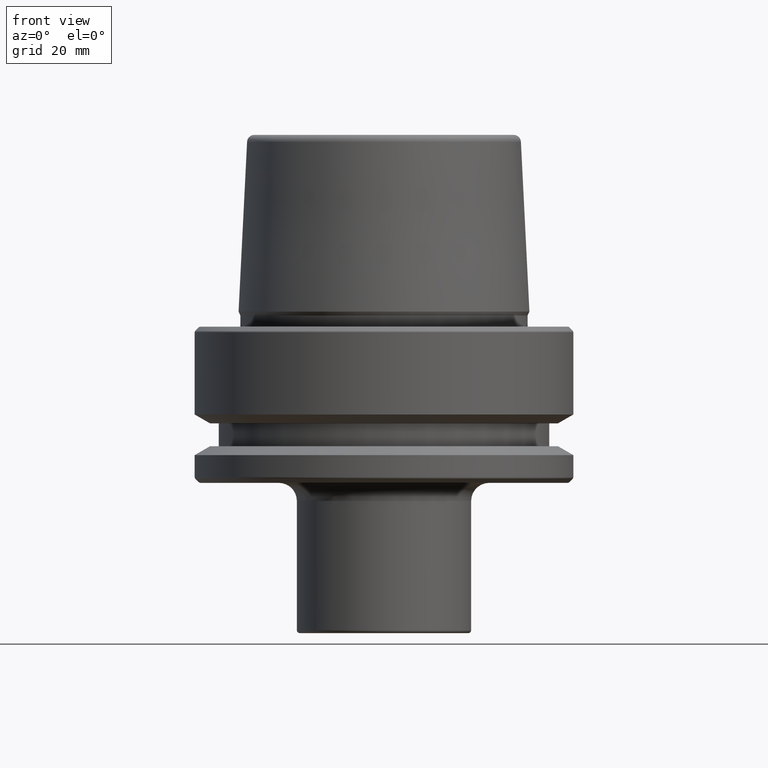
[diagram: clean part render]
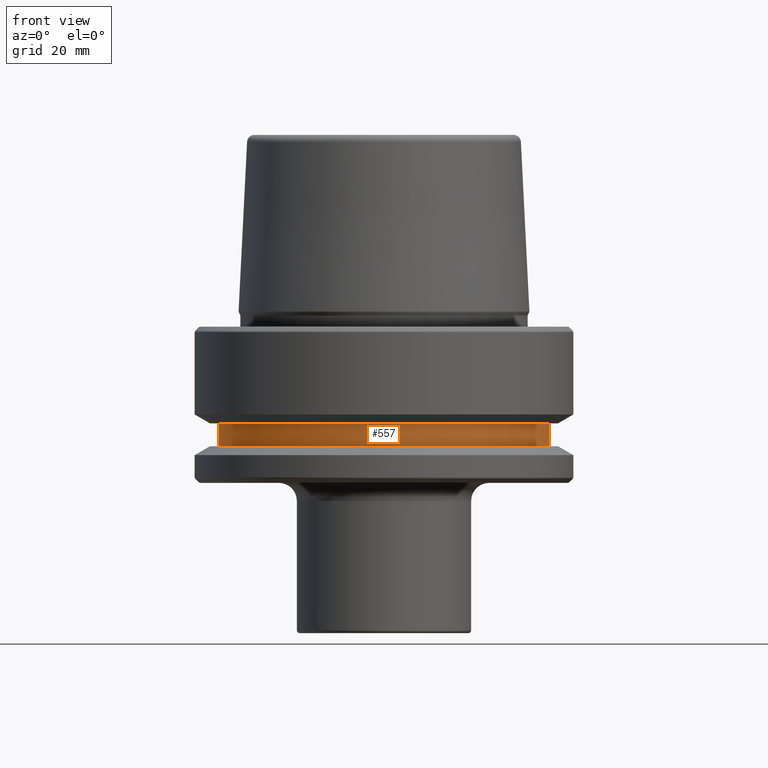
[diagram: same view with one face highlighted and labeled with its STEP entity id]
A machine part, front view. The second image highlights one B-rep face of the part: STEP entity #557.
In plain terms, the highlighted cylindrical surface (partial cylindrical patch) has radius 27.5 mm, axis along (-0, -0, 1).
Its self-contained STEP definition (entity closure, byte-faithful):
#17 = CARTESIAN_POINT ( 'NONE',  ( 0.0000000000000000000, 0.0000000000000000000, -19.90000000000001600 ) ) ;
#56 = EDGE_LOOP ( 'NONE', ( #480, #457, #665, #172 ) ) ;
#165 = VECTOR ( 'NONE', #281, 1000.000000000000000 ) ;
#166 = DIRECTION ( 'NONE',  ( 1.000000000000000000, 0.0000000000000000000, 0.0000000000000000000 ) ) ;
#172 = ORIENTED_EDGE ( 'NONE', *, *, #863, .F. ) ;
#194 = CARTESIAN_POINT ( 'NONE',  ( 27.49999999999999600, 0.0000000000000000000, 78.96908074195309300 ) ) ;
#211 = VECTOR ( 'NONE', #598, 1000.000000000000000 ) ;
#236 = EDGE_CURVE ( 'NONE', #1180, #262, #825, .T. ) ;
#242 = DIRECTION ( 'NONE',  ( -0.0000000000000000000, -0.0000000000000000000, 1.000000000000000000 ) ) ;
#245 = AXIS2_PLACEMENT_3D ( 'NONE', #483, #1174, #580 ) ;
#262 = VERTEX_POINT ( 'NONE', #725 ) ;
#276 = CYLINDRICAL_SURFACE ( 'NONE', #245, 27.49999999999999600 ) ;
#281 = DIRECTION ( 'NONE',  ( -0.0000000000000000000, -0.0000000000000000000, 1.000000000000000000 ) ) ;
#425 = DIRECTION ( 'NONE',  ( 1.000000000000000000, 0.0000000000000000000, 0.0000000000000000000 ) ) ;
#457 = ORIENTED_EDGE ( 'NONE', *, *, #236, .T. ) ;
#480 = ORIENTED_EDGE ( 'NONE', *, *, #822, .F. ) ;
#483 = CARTESIAN_POINT ( 'NONE',  ( 0.0000000000000000000, 0.0000000000000000000, 78.96908074195309300 ) ) ;
#556 = CARTESIAN_POINT ( 'NONE',  ( 0.0000000000000000000, 0.0000000000000000000, -16.10000000000001600 ) ) ;
#557 = ADVANCED_FACE ( 'NONE', ( #1021 ), #276, .T. ) ;
#580 = DIRECTION ( 'NONE',  ( 1.000000000000000000, 0.0000000000000000000, 0.0000000000000000000 ) ) ;
#598 = DIRECTION ( 'NONE',  ( -0.0000000000000000000, -0.0000000000000000000, 1.000000000000000000 ) ) ;
#665 = ORIENTED_EDGE ( 'NONE', *, *, #792, .T. ) ;
#710 = DIRECTION ( 'NONE',  ( -0.0000000000000000000, -0.0000000000000000000, 1.000000000000000000 ) ) ;
#713 = LINE ( 'NONE', #1203, #165 ) ;
#725 = CARTESIAN_POINT ( 'NONE',  ( 27.49999999999999600, 0.0000000000000000000, -19.90000000000001600 ) ) ;
#727 = VERTEX_POINT ( 'NONE', #1094 ) ;
#792 = EDGE_CURVE ( 'NONE', #262, #1137, #853, .T. ) ;
#822 = EDGE_CURVE ( 'NONE', #1180, #727, #713, .T. ) ;
#825 = CIRCLE ( 'NONE', #911, 27.49999999999999600 ) ;
#849 = CIRCLE ( 'NONE', #1013, 27.49999999999999600 ) ;
#853 = LINE ( 'NONE', #194, #211 ) ;
#863 = EDGE_CURVE ( 'NONE', #727, #1137, #849, .T. ) ;
#911 = AXIS2_PLACEMENT_3D ( 'NONE', #17, #710, #425 ) ;
#1005 = CARTESIAN_POINT ( 'NONE',  ( 27.49999999999999600, 0.0000000000000000000, -16.10000000000001600 ) ) ;
#1013 = AXIS2_PLACEMENT_3D ( 'NONE', #556, #242, #166 ) ;
#1021 = FACE_OUTER_BOUND ( 'NONE', #56, .T. ) ;
#1062 = CARTESIAN_POINT ( 'NONE',  ( -27.49999999999999600, 3.367778697655220900E-015, -19.90000000000001600 ) ) ;
#1094 = CARTESIAN_POINT ( 'NONE',  ( -27.49999999999999600, 3.367778697655220900E-015, -16.10000000000001600 ) ) ;
#1137 = VERTEX_POINT ( 'NONE', #1005 ) ;
#1174 = DIRECTION ( 'NONE',  ( -0.0000000000000000000, -0.0000000000000000000, 1.000000000000000000 ) ) ;
#1180 = VERTEX_POINT ( 'NONE', #1062 ) ;
#1203 = CARTESIAN_POINT ( 'NONE',  ( -27.49999999999999600, 3.367778697655220900E-015, 78.96908074195309300 ) ) ;